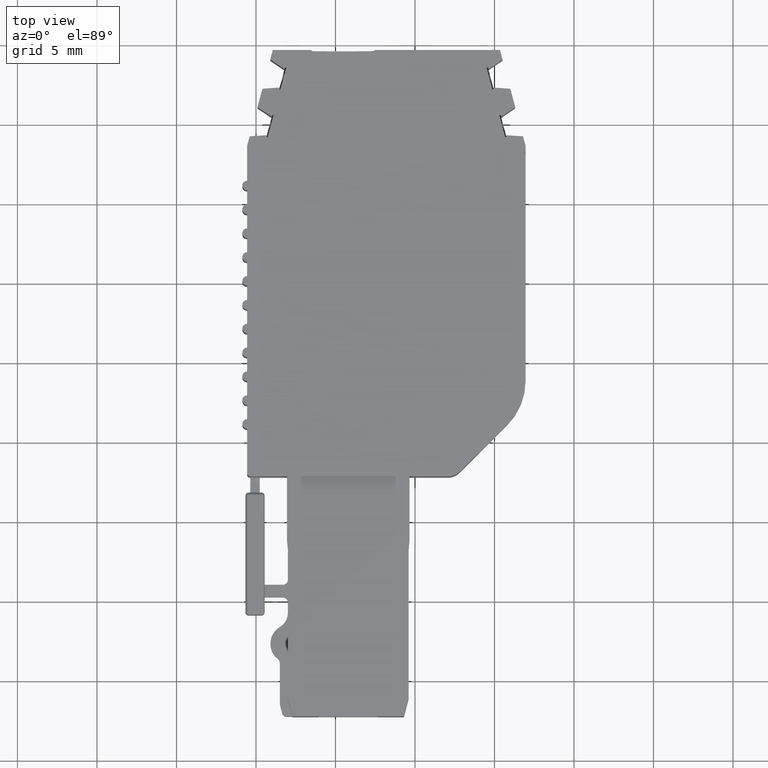
[diagram: clean part render]
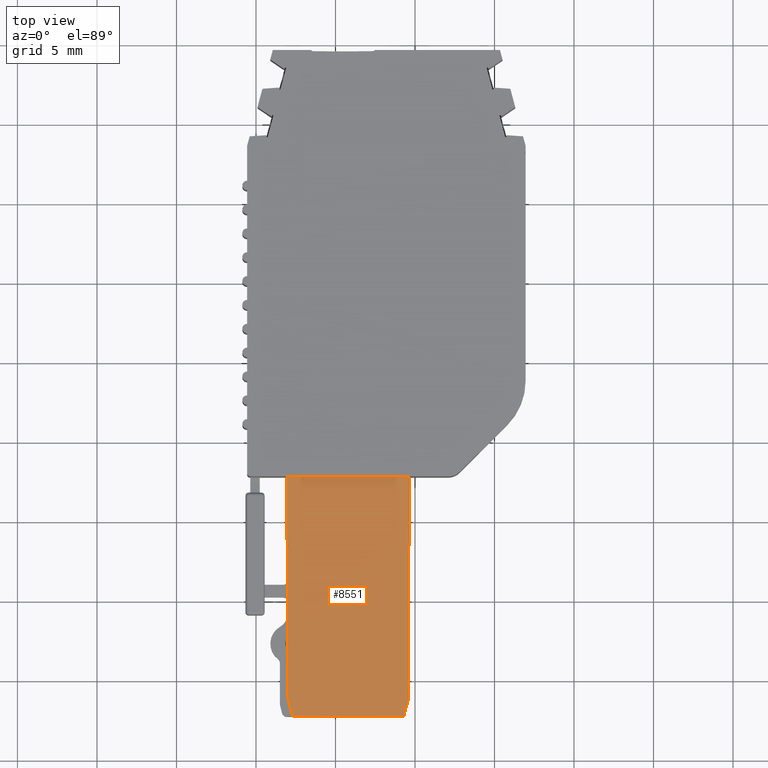
[diagram: same view with one face highlighted and labeled with its STEP entity id]
A machine part, top view. The second image highlights one B-rep face of the part: STEP entity #8551.
In plain terms, the highlighted planar face has unit normal (0, 0, 1).
Its self-contained STEP definition (entity closure, byte-faithful):
#121 = CARTESIAN_POINT ( 'NONE',  ( -15.39598760276528100, -6.134233771461151900, 2.055851566870937400 ) ) ;
#305 = EDGE_CURVE ( 'NONE', #2451, #774, #667, .T. ) ;
#439 = VECTOR ( 'NONE', #3400, 1000.000000000000000 ) ;
#447 = ORIENTED_EDGE ( 'NONE', *, *, #1174, .T. ) ;
#540 = ORIENTED_EDGE ( 'NONE', *, *, #305, .T. ) ;
#550 = DIRECTION ( 'NONE',  ( 0.08715574274765960900, -0.9961946980917454300, 0.0000000000000000000 ) ) ;
#667 = LINE ( 'NONE', #6803, #439 ) ;
#691 = ORIENTED_EDGE ( 'NONE', *, *, #5036, .T. ) ;
#697 = LINE ( 'NONE', #3193, #5789 ) ;
#774 = VERTEX_POINT ( 'NONE', #6104 ) ;
#908 = DIRECTION ( 'NONE',  ( 0.0000000000000000000, 0.0000000000000000000, 1.000000000000000000 ) ) ;
#980 = DIRECTION ( 'NONE',  ( -0.08715574274765465500, -0.9961946980917457700, -0.0000000000000000000 ) ) ;
#1006 = LINE ( 'NONE', #2524, #6963 ) ;
#1024 = CARTESIAN_POINT ( 'NONE',  ( -22.69598760276447500, -7.291366595901116900, 2.055851566870937400 ) ) ;
#1163 = DIRECTION ( 'NONE',  ( 0.2509641976593532900, -0.9679963695661244500, 0.0000000000000000000 ) ) ;
#1174 = EDGE_CURVE ( 'NONE', #1297, #3734, #3696, .T. ) ;
#1240 = VERTEX_POINT ( 'NONE', #5907 ) ;
#1297 = VERTEX_POINT ( 'NONE', #7992 ) ;
#1454 = CARTESIAN_POINT ( 'NONE',  ( -15.34598760276527500, 3.861123162477171800, 2.055851566870936500 ) ) ;
#1593 = LINE ( 'NONE', #7374, #8707 ) ;
#1736 = ORIENTED_EDGE ( 'NONE', *, *, #6238, .F. ) ;
#1801 = ORIENTED_EDGE ( 'NONE', *, *, #5563, .T. ) ;
#1885 = VERTEX_POINT ( 'NONE', #4125 ) ;
#1942 = CARTESIAN_POINT ( 'NONE',  ( -23.04598760276555000, 3.861123162477171400, 2.055851566870937000 ) ) ;
#2234 = FACE_OUTER_BOUND ( 'NONE', #2527, .T. ) ;
#2451 = VERTEX_POINT ( 'NONE', #121 ) ;
#2499 = CARTESIAN_POINT ( 'NONE',  ( -15.34598760276527700, 7.789620547339174200, 2.055851566870936500 ) ) ;
#2524 = CARTESIAN_POINT ( 'NONE',  ( -15.39598760276528100, -6.134233771461152800, 2.055851566870937400 ) ) ;
#2527 = EDGE_LOOP ( 'NONE', ( #1736, #1801, #7062, #691, #447, #5281, #4114, #6698, #540, #4443 ) ) ;
#2531 = CARTESIAN_POINT ( 'NONE',  ( -22.99598760276554900, -6.134233771461155400, 2.055851566870937400 ) ) ;
#2735 = CARTESIAN_POINT ( 'NONE',  ( -22.99598760276554900, -6.134233771461155400, 2.055851566870937400 ) ) ;
#2794 = VECTOR ( 'NONE', #980, 1000.000000000000100 ) ;
#2960 = CARTESIAN_POINT ( 'NONE',  ( -15.59598760287368300, -3.134233782455303700, 2.055851566870937400 ) ) ;
#3136 = DIRECTION ( 'NONE',  ( 0.0000000000000000000, -1.000000000000000000, -0.0000000000000000000 ) ) ;
#3193 = CARTESIAN_POINT ( 'NONE',  ( -23.04598760276555000, 7.789620547339063200, 2.055851566870936500 ) ) ;
#3316 = CARTESIAN_POINT ( 'NONE',  ( -23.04598760276555000, 3.861123162477143800, 2.055851566870937400 ) ) ;
#3395 = DIRECTION ( 'NONE',  ( -1.000000000000000000, -0.0000000000000000000, 0.0000000000000000000 ) ) ;
#3400 = DIRECTION ( 'NONE',  ( -0.0000000000000000000, 1.000000000000000000, 0.0000000000000000000 ) ) ;
#3696 = LINE ( 'NONE', #6600, #4019 ) ;
#3734 = VERTEX_POINT ( 'NONE', #2735 ) ;
#3785 = CARTESIAN_POINT ( 'NONE',  ( -15.34598760276527500, 3.861123162477176700, 2.055851566870936500 ) ) ;
#3885 = VECTOR ( 'NONE', #1163, 1000.000000000000200 ) ;
#3967 = DIRECTION ( 'NONE',  ( -1.103935745675566000E-016, 1.000000000000000000, -0.0000000000000000000 ) ) ;
#3981 = LINE ( 'NONE', #3785, #2794 ) ;
#4019 = VECTOR ( 'NONE', #3136, 1000.000000000000000 ) ;
#4114 = ORIENTED_EDGE ( 'NONE', *, *, #4972, .T. ) ;
#4125 = CARTESIAN_POINT ( 'NONE',  ( -15.34598760276527900, 7.789620547339092500, 2.055851566870938300 ) ) ;
#4345 = PLANE ( 'NONE',  #8210 ) ;
#4443 = ORIENTED_EDGE ( 'NONE', *, *, #5957, .F. ) ;
#4510 = VERTEX_POINT ( 'NONE', #8932 ) ;
#4707 = VECTOR ( 'NONE', #550, 1000.000000000000000 ) ;
#4755 = LINE ( 'NONE', #2531, #3885 ) ;
#4972 = EDGE_CURVE ( 'NONE', #6625, #4510, #1593, .T. ) ;
#5036 = EDGE_CURVE ( 'NONE', #5119, #1297, #5361, .T. ) ;
#5119 = VERTEX_POINT ( 'NONE', #1942 ) ;
#5281 = ORIENTED_EDGE ( 'NONE', *, *, #5451, .T. ) ;
#5290 = DIRECTION ( 'NONE',  ( -0.2509641976593554600, -0.9679963695661238900, -0.0000000000000000000 ) ) ;
#5361 = LINE ( 'NONE', #3316, #4707 ) ;
#5451 = EDGE_CURVE ( 'NONE', #3734, #6625, #4755, .T. ) ;
#5563 = EDGE_CURVE ( 'NONE', #1885, #1240, #7840, .T. ) ;
#5789 = VECTOR ( 'NONE', #3967, 1000.000000000000000 ) ;
#5907 = CARTESIAN_POINT ( 'NONE',  ( -23.04598760276555000, 7.789620545579635900, 2.055851566870937400 ) ) ;
#5957 = EDGE_CURVE ( 'NONE', #7548, #774, #3981, .T. ) ;
#5974 = DIRECTION ( 'NONE',  ( 2.207871491351069800E-016, -1.000000000000000000, -0.0000000000000000000 ) ) ;
#6054 = DIRECTION ( 'NONE',  ( 1.000000000000000000, 0.0000000000000000000, -0.0000000000000000000 ) ) ;
#6104 = CARTESIAN_POINT ( 'NONE',  ( -15.39598760276527800, 3.289620547339083600, 2.055851566870937000 ) ) ;
#6238 = EDGE_CURVE ( 'NONE', #1885, #7548, #7942, .T. ) ;
#6422 = DIRECTION ( 'NONE',  ( 1.000000000000000000, 0.0000000000000000000, -0.0000000000000000000 ) ) ;
#6473 = VECTOR ( 'NONE', #3395, 1000.000000000000000 ) ;
#6600 = CARTESIAN_POINT ( 'NONE',  ( -22.99598760276554900, -3.134233782455303700, 2.055851566870937400 ) ) ;
#6625 = VERTEX_POINT ( 'NONE', #1024 ) ;
#6698 = ORIENTED_EDGE ( 'NONE', *, *, #8119, .F. ) ;
#6705 = EDGE_CURVE ( 'NONE', #5119, #1240, #697, .T. ) ;
#6793 = CARTESIAN_POINT ( 'NONE',  ( -15.59598760287368300, 7.789620545579635900, 2.055851566870937400 ) ) ;
#6803 = CARTESIAN_POINT ( 'NONE',  ( -15.39598760276527900, -3.134233782455303700, 2.055851566870937400 ) ) ;
#6963 = VECTOR ( 'NONE', #5290, 1000.000000000000000 ) ;
#7062 = ORIENTED_EDGE ( 'NONE', *, *, #6705, .F. ) ;
#7374 = CARTESIAN_POINT ( 'NONE',  ( -15.59598760287368300, -7.291366595901118700, 2.055851566870937400 ) ) ;
#7548 = VERTEX_POINT ( 'NONE', #1454 ) ;
#7840 = LINE ( 'NONE', #6793, #6473 ) ;
#7942 = LINE ( 'NONE', #2499, #8604 ) ;
#7992 = CARTESIAN_POINT ( 'NONE',  ( -22.99598760276554900, 3.289620547339070700, 2.055851566870937000 ) ) ;
#8119 = EDGE_CURVE ( 'NONE', #2451, #4510, #1006, .T. ) ;
#8210 = AXIS2_PLACEMENT_3D ( 'NONE', #2960, #908, #6422 ) ;
#8551 = ADVANCED_FACE ( 'NONE', ( #2234 ), #4345, .T. ) ;
#8604 = VECTOR ( 'NONE', #5974, 1000.000000000000000 ) ;
#8707 = VECTOR ( 'NONE', #6054, 1000.000000000000000 ) ;
#8932 = CARTESIAN_POINT ( 'NONE',  ( -15.69598760276635700, -7.291366595901118700, 2.055851566870937400 ) ) ;